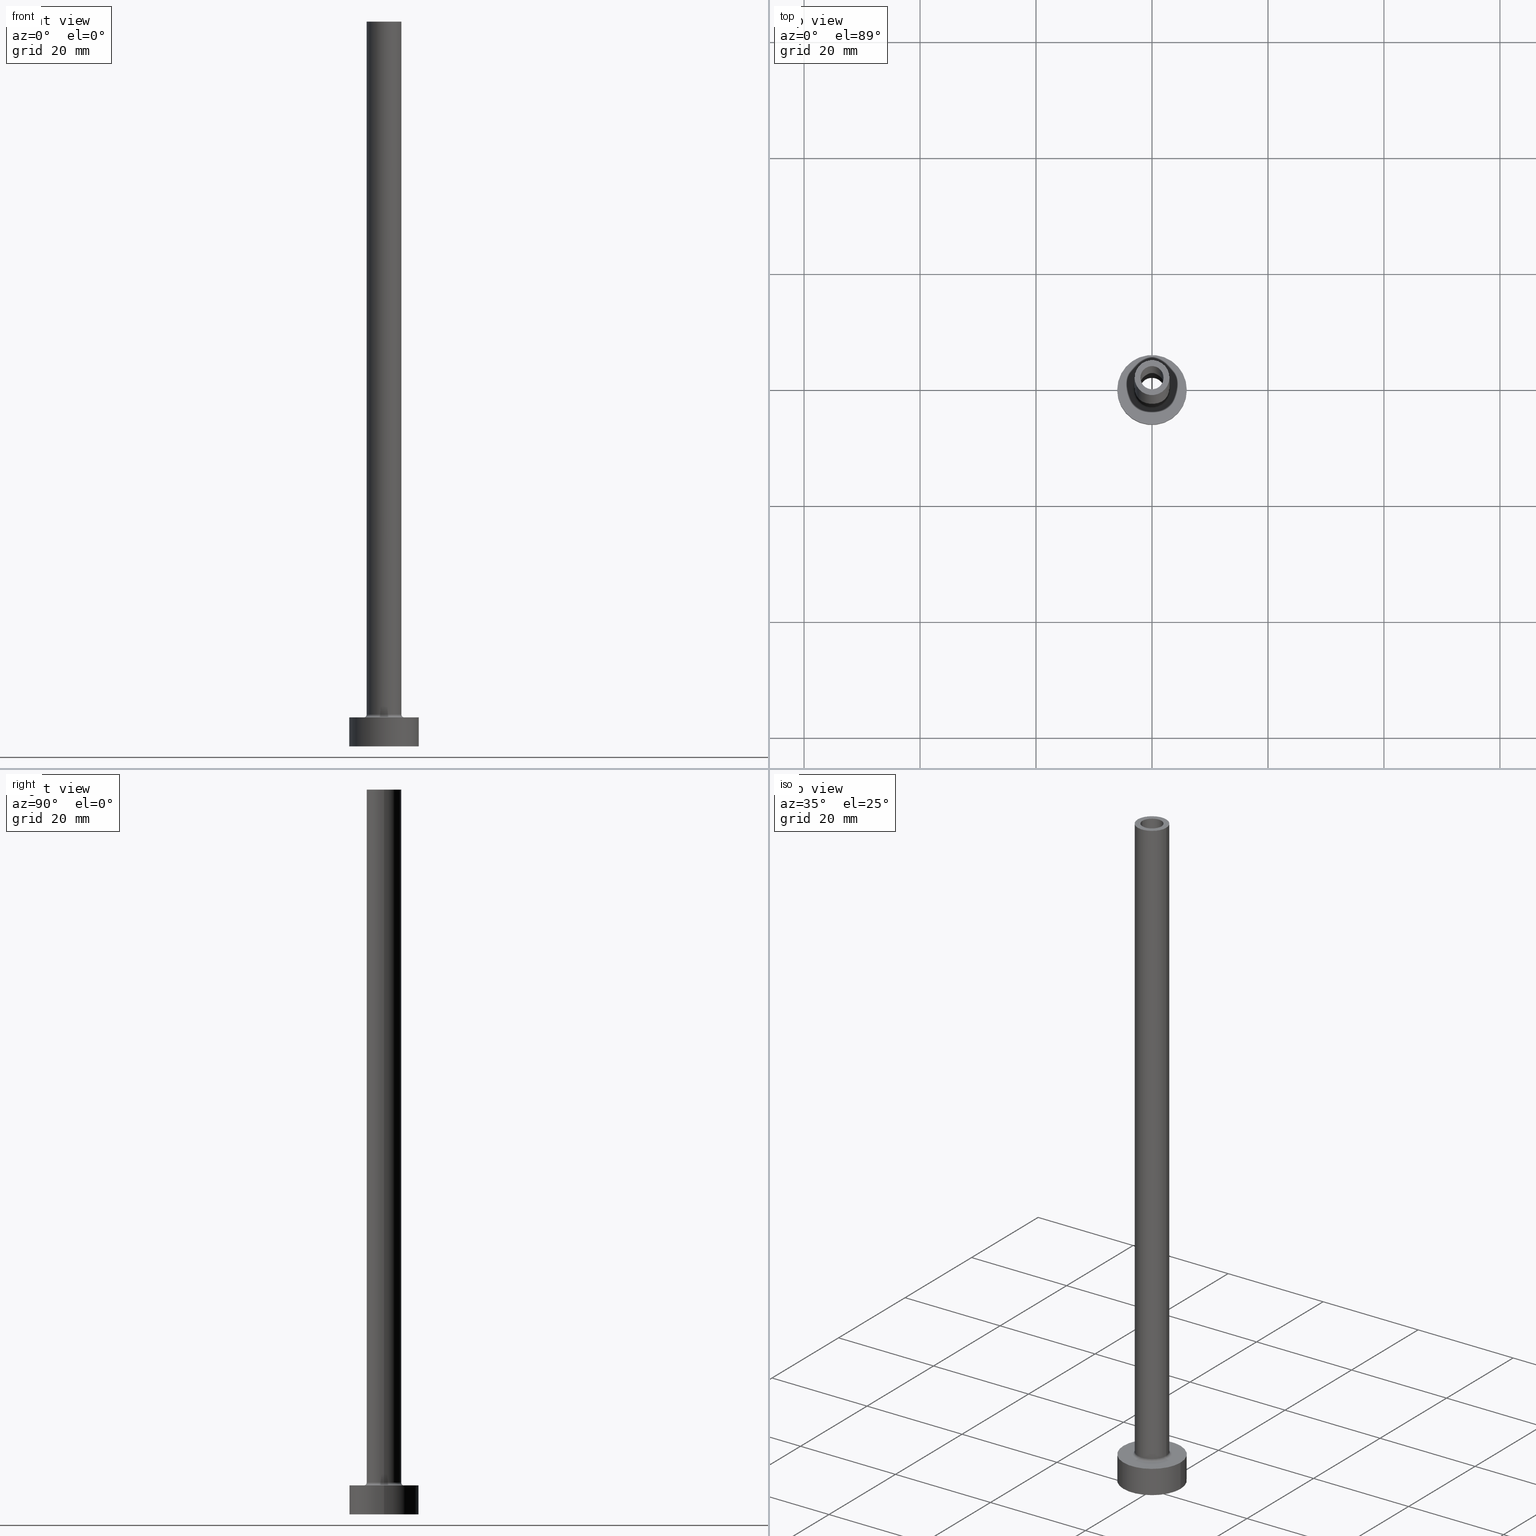
[diagram: canonical four-view strip — front | top / right | iso, engineering-drawing reading convention]
A machine part, canonical four-view strip (front | top / right | iso — engineering-drawing reading convention). The complete STEP part file that produces these views, byte-faithful:
ISO-10303-21;
HEADER;
FILE_DESCRIPTION (( 'STEP AP203' ),
    '1' );
FILE_NAME ('0551.STEP',
    '2023-02-13T17:46:34',
    ( '' ),
    ( '' ),
    'SwSTEP 2.0',
    'SolidWorks 2019',
    '' );
FILE_SCHEMA (( 'CONFIG_CONTROL_DESIGN' ));
ENDSEC;

DATA;
#1 = ADVANCED_FACE ( 'NONE', ( #415 ), #133, .F. ) ;
#2 = DATE_AND_TIME ( #95, #412 ) ;
#3 = FACE_BOUND ( 'NONE', #331, .T. ) ;
#4 = CARTESIAN_POINT ( 'NONE',  ( 0.000000000000000000, 0.000000000000000000, 80.00000000000000000 ) ) ;
#5 = AXIS2_PLACEMENT_3D ( 'NONE', #68, #219, #428 ) ;
#6 = LINE ( 'NONE', #357, #21 ) ;
#7 = PRODUCT_DEFINITION ( 'NEZN�M�', '', #178, #377 ) ;
#8 = CARTESIAN_POINT ( 'NONE',  ( 0.000000000000000000, 0.000000000000000000, 125.0000000000000000 ) ) ;
#9 = LOCAL_TIME ( 18, 46, 34.00000000000000000, #324 ) ;
#10 = DIRECTION ( 'NONE',  ( 1.000000000000000000, 0.000000000000000000, 0.000000000000000000 ) ) ;
#11 = EDGE_LOOP ( 'NONE', ( #150, #46, #402, #298 ) ) ;
#12 = PERSON_AND_ORGANIZATION ( #160, #295 ) ;
#13 = FACE_BOUND ( 'NONE', #442, .T. ) ;
#14 = EDGE_LOOP ( 'NONE', ( #126, #187, #86, #418 ) ) ;
#15 = DIRECTION ( 'NONE',  ( -1.000000000000000000, 0.000000000000000000, 0.000000000000000000 ) ) ;
#16 = ORIENTED_EDGE ( 'NONE', *, *, #125, .T. ) ;
#17 = CARTESIAN_POINT ( 'NONE',  ( 3.500000000000000444, 0.000000000000000000, 5.000000000000002665 ) ) ;
#18 = EDGE_LOOP ( 'NONE', ( #278, #235 ) ) ;
#19 = APPROVAL_ROLE ( '' ) ;
#20 = ORIENTED_EDGE ( 'NONE', *, *, #175, .T. ) ;
#21 = VECTOR ( 'NONE', #36, 1000.000000000000000 ) ;
#22 = CALENDAR_DATE ( 2023, 13, 2 ) ;
#23 = ADVANCED_FACE ( 'NONE', ( #277 ), #96, .T. ) ;
#24 = EDGE_CURVE ( 'NONE', #25, #272, #279, .T. ) ;
#25 = VERTEX_POINT ( 'NONE', #448 ) ;
#26 = DIRECTION ( 'NONE',  ( 1.000000000000000000, 0.000000000000000000, -0.000000000000000000 ) ) ;
#27 = DIRECTION ( 'NONE',  ( 1.000000000000000000, 0.000000000000000000, 0.000000000000000000 ) ) ;
#28 = CC_DESIGN_PERSON_AND_ORGANIZATION_ASSIGNMENT ( #167, #379, ( #7 ) ) ;
#29 = FACE_OUTER_BOUND ( 'NONE', #280, .T. ) ;
#30 = CARTESIAN_POINT ( 'NONE',  ( 0.000000000000000000, 0.000000000000000000, 80.00000000000000000 ) ) ;
#31 = LOCAL_TIME ( 18, 46, 34.00000000000000000, #257 ) ;
#32 = CARTESIAN_POINT ( 'NONE',  ( 0.000000000000000000, 0.000000000000000000, 80.00000000000000000 ) ) ;
#33 =( NAMED_UNIT ( * ) SI_UNIT ( $, .STERADIAN. ) SOLID_ANGLE_UNIT ( ) );
#34 = CIRCLE ( 'NONE', #349, 2.149999999999999911 ) ;
#35 = CIRCLE ( 'NONE', #381, 6.000000000000000888 ) ;
#36 = DIRECTION ( 'NONE',  ( -0.000000000000000000, -0.000000000000000000, -1.000000000000000000 ) ) ;
#37 = MANIFOLD_SOLID_BREP ( 'Odebrat vysunut�m4', #273 ) ;
#38 = DIRECTION ( 'NONE',  ( 0.000000000000000000, 0.000000000000000000, 1.000000000000000000 ) ) ;
#39 = AXIS2_PLACEMENT_3D ( 'NONE', #56, #347, #26 ) ;
#40 = CARTESIAN_POINT ( 'NONE',  ( 0.000000000000000000, 0.000000000000000000, 125.0000000000000000 ) ) ;
#41 = ORIENTED_EDGE ( 'NONE', *, *, #170, .T. ) ;
#42 = EDGE_CURVE ( 'NONE', #404, #226, #134, .T. ) ;
#43 = CC_DESIGN_PERSON_AND_ORGANIZATION_ASSIGNMENT ( #284, #424, ( #168 ) ) ;
#44 = CARTESIAN_POINT ( 'NONE',  ( 0.000000000000000000, 0.000000000000000000, 0.000000000000000000 ) ) ;
#45 = CARTESIAN_POINT ( 'NONE',  ( 6.000000000000000888, 7.347880794884120722E-16, 0.000000000000000000 ) ) ;
#46 = ORIENTED_EDGE ( 'NONE', *, *, #211, .F. ) ;
#47 = DIRECTION ( 'NONE',  ( 0.000000000000000000, 0.000000000000000000, 1.000000000000000000 ) ) ;
#48 = ORIENTED_EDGE ( 'NONE', *, *, #340, .T. ) ;
#49 = DIRECTION ( 'NONE',  ( 1.000000000000000000, 0.000000000000000000, 0.000000000000000000 ) ) ;
#50 = EDGE_LOOP ( 'NONE', ( #372, #409 ) ) ;
#51 = CARTESIAN_POINT ( 'NONE',  ( 0.000000000000000000, 0.000000000000000000, 125.0000000000000000 ) ) ;
#52 = ORIENTED_EDGE ( 'NONE', *, *, #170, .F. ) ;
#53 = DIRECTION ( 'NONE',  ( -0.000000000000000000, -0.000000000000000000, -1.000000000000000000 ) ) ;
#54 = ORIENTED_EDGE ( 'NONE', *, *, #387, .T. ) ;
#55 = EDGE_CURVE ( 'NONE', #337, #100, #198, .T. ) ;
#56 = CARTESIAN_POINT ( 'NONE',  ( 0.000000000000000000, 0.000000000000000000, 0.000000000000000000 ) ) ;
#57 = AXIS2_PLACEMENT_3D ( 'NONE', #77, #328, #294 ) ;
#58 = DIRECTION ( 'NONE',  ( -1.000000000000000000, 0.000000000000000000, 0.000000000000000000 ) ) ;
#59 = ORIENTED_EDGE ( 'NONE', *, *, #387, .F. ) ;
#60 = ORIENTED_EDGE ( 'NONE', *, *, #24, .F. ) ;
#61 = PERSON_AND_ORGANIZATION ( #160, #295 ) ;
#62 = ORIENTED_EDGE ( 'NONE', *, *, #453, .F. ) ;
#63 = DIRECTION ( 'NONE',  ( 1.000000000000000000, 0.000000000000000000, 0.000000000000000000 ) ) ;
#64 = AXIS2_PLACEMENT_3D ( 'NONE', #209, #420, #27 ) ;
#65 = CARTESIAN_POINT ( 'NONE',  ( -6.000000000000000888, 0.000000000000000000, 0.000000000000000000 ) ) ;
#66 = LINE ( 'NONE', #307, #360 ) ;
#67 = ADVANCED_FACE ( 'NONE', ( #130 ), #172, .F. ) ;
#68 = CARTESIAN_POINT ( 'NONE',  ( 0.000000000000000000, 0.000000000000000000, 5.500000000000005329 ) ) ;
#69 = LINE ( 'NONE', #362, #164 ) ;
#70 = CALENDAR_DATE ( 2023, 13, 2 ) ;
#71 = CARTESIAN_POINT ( 'NONE',  ( 0.000000000000000000, 0.000000000000000000, 80.00000000000000000 ) ) ;
#72 = CC_DESIGN_PERSON_AND_ORGANIZATION_ASSIGNMENT ( #251, #429, ( #286 ) ) ;
#73 = ADVANCED_FACE ( 'NONE', ( #29 ), #450, .T. ) ;
#74 = ADVANCED_FACE ( 'NONE', ( #315, #241 ), #206, .F. ) ;
#75 = AXIS2_PLACEMENT_3D ( 'NONE', #214, #169, #352 ) ;
#76 = DIRECTION ( 'NONE',  ( 1.000000000000000000, 0.000000000000000000, 0.000000000000000000 ) ) ;
#77 = CARTESIAN_POINT ( 'NONE',  ( 0.000000000000000000, 0.000000000000000000, 5.500000000000005329 ) ) ;
#78 = AXIS2_PLACEMENT_3D ( 'NONE', #8, #47, #113 ) ;
#79 = ORIENTED_EDGE ( 'NONE', *, *, #125, .F. ) ;
#80 = CARTESIAN_POINT ( 'NONE',  ( -3.000000000000000444, 0.000000000000000000, 5.500000000000005329 ) ) ;
#81 = ORIENTED_EDGE ( 'NONE', *, *, #207, .F. ) ;
#82 = DIRECTION ( 'NONE',  ( 1.000000000000000000, 0.000000000000000000, -0.000000000000000000 ) ) ;
#83 = ORIENTED_EDGE ( 'NONE', *, *, #365, .F. ) ;
#84 = AXIS2_PLACEMENT_3D ( 'NONE', #4, #431, #215 ) ;
#85 = LINE ( 'NONE', #297, #205 ) ;
#86 = ORIENTED_EDGE ( 'NONE', *, *, #151, .T. ) ;
#87 = CIRCLE ( 'NONE', #78, 3.000000000000000444 ) ;
#88 = CARTESIAN_POINT ( 'NONE',  ( 0.000000000000000000, 0.000000000000000000, 0.000000000000000000 ) ) ;
#89 = VERTEX_POINT ( 'NONE', #131 ) ;
#90 = EDGE_CURVE ( 'NONE', #339, #195, #158, .T. ) ;
#91 = AXIS2_PLACEMENT_3D ( 'NONE', #397, #108, #144 ) ;
#92 = LOCAL_TIME ( 18, 46, 34.00000000000000000, #202 ) ;
#93 = CARTESIAN_POINT ( 'NONE',  ( 0.000000000000000000, 0.000000000000000000, 86.08111831820431803 ) ) ;
#94 = PRODUCT_DEFINITION_SHAPE ( 'NONE', 'NONE',  #7 ) ;
#95 = CALENDAR_DATE ( 2023, 13, 2 ) ;
#96 = CYLINDRICAL_SURFACE ( 'NONE', #247, 6.000000000000000888 ) ;
#97 = AXIS2_PLACEMENT_3D ( 'NONE', #363, #193, #10 ) ;
#98 = CARTESIAN_POINT ( 'NONE',  ( 0.000000000000000000, 0.000000000000000000, 125.0000000000000000 ) ) ;
#99 = ORIENTED_EDGE ( 'NONE', *, *, #340, .F. ) ;
#100 = VERTEX_POINT ( 'NONE', #358 ) ;
#101 = EDGE_CURVE ( 'NONE', #132, #271, #293, .T. ) ;
#102 = AXIS2_PLACEMENT_3D ( 'NONE', #32, #425, #258 ) ;
#103 = SECURITY_CLASSIFICATION_LEVEL ( 'unclassified' ) ;
#104 = CIRCLE ( 'NONE', #194, 6.000000000000000888 ) ;
#105 = DIRECTION ( 'NONE',  ( 1.224646799147353207E-16, 1.000000000000000000, -0.000000000000000000 ) ) ;
#106 = EDGE_CURVE ( 'NONE', #195, #344, #319, .T. ) ;
#107 = PERSON_AND_ORGANIZATION ( #160, #295 ) ;
#108 = DIRECTION ( 'NONE',  ( 0.000000000000000000, -1.000000000000000000, 0.000000000000000000 ) ) ;
#109 = DIRECTION ( 'NONE',  ( 0.000000000000000000, 0.000000000000000000, 1.000000000000000000 ) ) ;
#110 = DIRECTION ( 'NONE',  ( 1.000000000000000000, 0.000000000000000000, 0.000000000000000000 ) ) ;
#111 = FACE_OUTER_BOUND ( 'NONE', #204, .T. ) ;
#112 = CYLINDRICAL_SURFACE ( 'NONE', #282, 6.000000000000000888 ) ;
#113 = DIRECTION ( 'NONE',  ( 1.000000000000000000, 0.000000000000000000, 0.000000000000000000 ) ) ;
#114 = ORIENTED_EDGE ( 'NONE', *, *, #449, .F. ) ;
#115 = APPROVAL_DATE_TIME ( #148, #421 ) ;
#116 = DIRECTION ( 'NONE',  ( 0.000000000000000000, 0.000000000000000000, 1.000000000000000000 ) ) ;
#117 = ORIENTED_EDGE ( 'NONE', *, *, #408, .T. ) ;
#118 = CYLINDRICAL_SURFACE ( 'NONE', #345, 2.000000000000000000 ) ;
#119 = EDGE_LOOP ( 'NONE', ( #302, #444, #346, #155 ) ) ;
#120 = DIRECTION ( 'NONE',  ( 0.000000000000000000, 0.000000000000000000, -1.000000000000000000 ) ) ;
#121 = ORIENTED_EDGE ( 'NONE', *, *, #365, .T. ) ;
#122 = CC_DESIGN_PERSON_AND_ORGANIZATION_ASSIGNMENT ( #61, #458, ( #178 ) ) ;
#123 = CIRCLE ( 'NONE', #269, 3.500000000000000444 ) ;
#124 = FACE_BOUND ( 'NONE', #250, .T. ) ;
#125 = EDGE_CURVE ( 'NONE', #272, #25, #192, .T. ) ;
#126 = ORIENTED_EDGE ( 'NONE', *, *, #320, .F. ) ;
#127 = APPROVAL_DATE_TIME ( #343, #274 ) ;
#128 = DIRECTION ( 'NONE',  ( 1.000000000000000000, 0.000000000000000000, 0.000000000000000000 ) ) ;
#129 =( LENGTH_UNIT ( ) NAMED_UNIT ( * ) SI_UNIT ( .MILLI., .METRE. ) );
#130 = FACE_OUTER_BOUND ( 'NONE', #244, .T. ) ;
#131 = CARTESIAN_POINT ( 'NONE',  ( 2.000000000000000000, 2.449293598294705921E-16, 125.0000000000000000 ) ) ;
#132 = VERTEX_POINT ( 'NONE', #289 ) ;
#133 = TOROIDAL_SURFACE ( 'NONE', #64, 3.500000000000000444, 0.5000000000000000000 ) ;
#134 = CIRCLE ( 'NONE', #396, 2.000000000000000000 ) ;
#135 = ADVANCED_BREP_SHAPE_REPRESENTATION ( '0551', ( #37, #398 ), #145 ) ;
#136 = EDGE_LOOP ( 'NONE', ( #48, #228 ) ) ;
#137 = CARTESIAN_POINT ( 'NONE',  ( 0.000000000000000000, 0.000000000000000000, 0.000000000000000000 ) ) ;
#138 = DIRECTION ( 'NONE',  ( -0.000000000000000000, -0.000000000000000000, -1.000000000000000000 ) ) ;
#139 = CIRCLE ( 'NONE', #57, 3.000000000000000444 ) ;
#140 = DIRECTION ( 'NONE',  ( -1.000000000000000000, 0.000000000000000000, 0.000000000000000000 ) ) ;
#141 = APPROVAL_DATE_TIME ( #2, #373 ) ;
#142 = CARTESIAN_POINT ( 'NONE',  ( -2.000000000000000000, 0.000000000000000000, 125.0000000000000000 ) ) ;
#143 = CC_DESIGN_DATE_AND_TIME_ASSIGNMENT ( #391, #240, ( #7 ) ) ;
#144 = DIRECTION ( 'NONE',  ( 0.000000000000000000, 0.000000000000000000, -1.000000000000000000 ) ) ;
#145 =( GEOMETRIC_REPRESENTATION_CONTEXT ( 3 ) GLOBAL_UNCERTAINTY_ASSIGNED_CONTEXT ( ( #236 ) ) GLOBAL_UNIT_ASSIGNED_CONTEXT ( ( #129, #174, #33 ) ) REPRESENTATION_CONTEXT ( 'NONE', 'WORKASPACE' ) );
#146 = CIRCLE ( 'NONE', #5, 3.000000000000000444 ) ;
#147 = CARTESIAN_POINT ( 'NONE',  ( 0.000000000000000000, 0.000000000000000000, 125.0000000000000000 ) ) ;
#148 = DATE_AND_TIME ( #332, #9 ) ;
#149 = CARTESIAN_POINT ( 'NONE',  ( 0.000000000000000000, 0.000000000000000000, 5.000000000000000000 ) ) ;
#150 = ORIENTED_EDGE ( 'NONE', *, *, #230, .F. ) ;
#151 = EDGE_CURVE ( 'NONE', #264, #166, #430, .T. ) ;
#152 = AXIS2_PLACEMENT_3D ( 'NONE', #149, #116, #82 ) ;
#153 = CYLINDRICAL_SURFACE ( 'NONE', #308, 2.149999999999999911 ) ;
#154 = CIRCLE ( 'NONE', #432, 2.149999999999999911 ) ;
#155 = ORIENTED_EDGE ( 'NONE', *, *, #159, .F. ) ;
#156 = CARTESIAN_POINT ( 'NONE',  ( 3.000000000000000444, 3.673940397442060361E-16, 125.0000000000000000 ) ) ;
#157 = VERTEX_POINT ( 'NONE', #183 ) ;
#158 = CIRCLE ( 'NONE', #455, 3.000000000000000444 ) ;
#159 = EDGE_CURVE ( 'NONE', #25, #231, #69, .T. ) ;
#160 = PERSON ( 'NEUR�EN�', 'NEUR�EN�', 'NEUR�EN�', ('NEUR�EN�'), ('NEUR�EN�'), ('NEUR�EN�') ) ;
#161 = DIRECTION ( 'NONE',  ( 0.000000000000000000, 0.000000000000000000, -1.000000000000000000 ) ) ;
#162 = AXIS2_PLACEMENT_3D ( 'NONE', #311, #422, #460 ) ;
#163 = VERTEX_POINT ( 'NONE', #142 ) ;
#164 = VECTOR ( 'NONE', #325, 1000.000000000000000 ) ;
#165 = DIRECTION ( 'NONE',  ( -0.000000000000000000, -0.000000000000000000, -1.000000000000000000 ) ) ;
#166 = VERTEX_POINT ( 'NONE', #65 ) ;
#167 = PERSON_AND_ORGANIZATION ( #160, #295 ) ;
#168 = PRODUCT ( '0551', '0551', '', ( #243 ) ) ;
#169 = DIRECTION ( 'NONE',  ( 0.000000000000000000, 0.000000000000000000, 1.000000000000000000 ) ) ;
#170 = EDGE_CURVE ( 'NONE', #226, #404, #233, .T. ) ;
#171 = DIRECTION ( 'NONE',  ( 1.000000000000000000, 0.000000000000000000, 0.000000000000000000 ) ) ;
#172 = CYLINDRICAL_SURFACE ( 'NONE', #176, 2.149999999999999911 ) ;
#173 = EDGE_LOOP ( 'NONE', ( #446, #117, #52, #59 ) ) ;
#174 =( NAMED_UNIT ( * ) PLANE_ANGLE_UNIT ( ) SI_UNIT ( $, .RADIAN. ) );
#175 = EDGE_CURVE ( 'NONE', #231, #406, #34, .T. ) ;
#176 = AXIS2_PLACEMENT_3D ( 'NONE', #93, #314, #380 ) ;
#177 = DIRECTION ( 'NONE',  ( -0.000000000000000000, -0.000000000000000000, -1.000000000000000000 ) ) ;
#178 = PRODUCT_DEFINITION_FORMATION_WITH_SPECIFIED_SOURCE ( 'LIBOVOLN�', '', #168, .NOT_KNOWN. ) ;
#179 = PLANE ( 'NONE',  #102 ) ;
#180 = AXIS2_PLACEMENT_3D ( 'NONE', #71, #38, #110 ) ;
#181 = TOROIDAL_SURFACE ( 'NONE', #416, 3.500000000000000444, 0.5000000000000000000 ) ;
#182 = CARTESIAN_POINT ( 'NONE',  ( 0.000000000000000000, 0.000000000000000000, 0.000000000000000000 ) ) ;
#183 = CARTESIAN_POINT ( 'NONE',  ( -3.500000000000000444, 4.286263797015737088E-16, 5.000000000000002665 ) ) ;
#184 = DIRECTION ( 'NONE',  ( 0.000000000000000000, 0.000000000000000000, -1.000000000000000000 ) ) ;
#185 = CARTESIAN_POINT ( 'NONE',  ( 0.000000000000000000, 0.000000000000000000, 5.000000000000000000 ) ) ;
#186 = DIRECTION ( 'NONE',  ( 0.000000000000000000, 0.000000000000000000, 1.000000000000000000 ) ) ;
#187 = ORIENTED_EDGE ( 'NONE', *, *, #207, .T. ) ;
#188 = APPROVAL_PERSON_ORGANIZATION ( #12, #421, #288 ) ;
#189 = APPLICATION_CONTEXT ( 'configuration controlled 3d designs of mechanical parts and assemblies' ) ;
#190 = LINE ( 'NONE', #371, #321 ) ;
#191 = ORIENTED_EDGE ( 'NONE', *, *, #106, .F. ) ;
#192 = CIRCLE ( 'NONE', #180, 2.149999999999999911 ) ;
#193 = DIRECTION ( 'NONE',  ( 0.000000000000000000, 0.000000000000000000, 1.000000000000000000 ) ) ;
#194 = AXIS2_PLACEMENT_3D ( 'NONE', #185, #270, #49 ) ;
#195 = VERTEX_POINT ( 'NONE', #218 ) ;
#196 = CARTESIAN_POINT ( 'NONE',  ( 2.149999999999999911, 2.632990618166808742E-16, 80.00000000000000000 ) ) ;
#197 = ORIENTED_EDGE ( 'NONE', *, *, #230, .T. ) ;
#198 = CIRCLE ( 'NONE', #457, 6.000000000000000888 ) ;
#199 = LOCAL_TIME ( 18, 46, 34.00000000000000000, #213 ) ;
#200 = APPLICATION_PROTOCOL_DEFINITION ( 'international standard', 'config_control_design', 1994, #189 ) ;
#201 = ORIENTED_EDGE ( 'NONE', *, *, #399, .T. ) ;
#202 = COORDINATED_UNIVERSAL_TIME_OFFSET ( 1, 0, .AHEAD. ) ;
#203 = EDGE_CURVE ( 'NONE', #157, #271, #123, .T. ) ;
#204 = EDGE_LOOP ( 'NONE', ( #60, #79 ) ) ;
#205 = VECTOR ( 'NONE', #120, 1000.000000000000000 ) ;
#206 = PLANE ( 'NONE',  #39 ) ;
#207 = EDGE_CURVE ( 'NONE', #100, #264, #459, .T. ) ;
#208 = VECTOR ( 'NONE', #433, 1000.000000000000000 ) ;
#209 = CARTESIAN_POINT ( 'NONE',  ( 0.000000000000000000, 0.000000000000000000, 5.500000000000005329 ) ) ;
#210 = ADVANCED_FACE ( 'NONE', ( #3, #111 ), #179, .F. ) ;
#211 = EDGE_CURVE ( 'NONE', #132, #344, #146, .T. ) ;
#212 = ADVANCED_FACE ( 'NONE', ( #216 ), #359, .F. ) ;
#213 = COORDINATED_UNIVERSAL_TIME_OFFSET ( 1, 0, .AHEAD. ) ;
#214 = CARTESIAN_POINT ( 'NONE',  ( 0.000000000000000000, 0.000000000000000000, 80.00000000000000000 ) ) ;
#215 = DIRECTION ( 'NONE',  ( 1.000000000000000000, 0.000000000000000000, 0.000000000000000000 ) ) ;
#216 = FACE_OUTER_BOUND ( 'NONE', #238, .T. ) ;
#217 = CIRCLE ( 'NONE', #162, 3.500000000000000444 ) ;
#218 = CARTESIAN_POINT ( 'NONE',  ( -3.000000000000000444, 0.000000000000000000, 125.0000000000000000 ) ) ;
#219 = DIRECTION ( 'NONE',  ( 0.000000000000000000, 0.000000000000000000, 1.000000000000000000 ) ) ;
#220 = EDGE_CURVE ( 'NONE', #339, #132, #6, .T. ) ;
#221 = CARTESIAN_POINT ( 'NONE',  ( 0.000000000000000000, 0.000000000000000000, 5.000000000000000000 ) ) ;
#222 = AXIS2_PLACEMENT_3D ( 'NONE', #40, #184, #326 ) ;
#223 = ADVANCED_FACE ( 'NONE', ( #461 ), #112, .T. ) ;
#224 = CIRCLE ( 'NONE', #370, 2.000000000000000000 ) ;
#225 = CYLINDRICAL_SURFACE ( 'NONE', #356, 3.000000000000000444 ) ;
#226 = VERTEX_POINT ( 'NONE', #283 ) ;
#227 = DIRECTION ( 'NONE',  ( 0.000000000000000000, 0.000000000000000000, 1.000000000000000000 ) ) ;
#228 = ORIENTED_EDGE ( 'NONE', *, *, #90, .T. ) ;
#229 = CARTESIAN_POINT ( 'NONE',  ( 0.000000000000000000, 0.000000000000000000, 125.0000000000000000 ) ) ;
#230 = EDGE_CURVE ( 'NONE', #344, #157, #451, .T. ) ;
#231 = VERTEX_POINT ( 'NONE', #256 ) ;
#232 = APPLICATION_CONTEXT ( 'configuration controlled 3d designs of mechanical parts and assemblies' ) ;
#233 = CIRCLE ( 'NONE', #84, 2.000000000000000000 ) ;
#234 = CARTESIAN_POINT ( 'NONE',  ( 2.000000000000000000, 2.449293598294705921E-16, 80.00000000000000000 ) ) ;
#235 = ORIENTED_EDGE ( 'NONE', *, *, #151, .F. ) ;
#236 = UNCERTAINTY_MEASURE_WITH_UNIT (LENGTH_MEASURE( 1.000000000000000082E-05 ), #129, 'distance_accuracy_value', 'NONE');
#237 = FACE_OUTER_BOUND ( 'NONE', #411, .T. ) ;
#238 = EDGE_LOOP ( 'NONE', ( #266, #121, #54, #452 ) ) ;
#239 = CC_DESIGN_APPROVAL ( #421, ( #286 ) ) ;
#240 = DATE_TIME_ROLE ( 'creation_date' ) ;
#241 = FACE_OUTER_BOUND ( 'NONE', #18, .T. ) ;
#242 = ADVANCED_FACE ( 'NONE', ( #394 ), #118, .F. ) ;
#243 = MECHANICAL_CONTEXT ( 'NONE', #232, 'mechanical' ) ;
#244 = EDGE_LOOP ( 'NONE', ( #361, #16, #268, #20 ) ) ;
#245 = EDGE_LOOP ( 'NONE', ( #364, #114 ) ) ;
#246 = AXIS2_PLACEMENT_3D ( 'NONE', #382, #177, #58 ) ;
#247 = AXIS2_PLACEMENT_3D ( 'NONE', #348, #417, #249 ) ;
#248 = ADVANCED_FACE ( 'NONE', ( #443 ), #225, .T. ) ;
#249 = DIRECTION ( 'NONE',  ( -1.000000000000000000, 0.000000000000000000, 0.000000000000000000 ) ) ;
#250 = EDGE_LOOP ( 'NONE', ( #310, #376 ) ) ;
#251 = PERSON_AND_ORGANIZATION ( #160, #295 ) ;
#252 = DIRECTION ( 'NONE',  ( 0.000000000000000000, 0.000000000000000000, 1.000000000000000000 ) ) ;
#253 = APPROVAL_ROLE ( '' ) ;
#254 = DIRECTION ( 'NONE',  ( -0.000000000000000000, -0.000000000000000000, -1.000000000000000000 ) ) ;
#255 = APPROVAL_STATUS ( 'not_yet_approved' ) ;
#256 = CARTESIAN_POINT ( 'NONE',  ( -2.149999999999999911, 0.000000000000000000, 0.000000000000000000 ) ) ;
#257 = COORDINATED_UNIVERSAL_TIME_OFFSET ( 1, 0, .AHEAD. ) ;
#258 = DIRECTION ( 'NONE',  ( 1.000000000000000000, 0.000000000000000000, -0.000000000000000000 ) ) ;
#259 = CARTESIAN_POINT ( 'NONE',  ( 0.000000000000000000, 0.000000000000000000, 5.000000000000000000 ) ) ;
#260 = EDGE_CURVE ( 'NONE', #163, #89, #335, .T. ) ;
#261 = CARTESIAN_POINT ( 'NONE',  ( -6.000000000000000888, 0.000000000000000000, 5.000000000000000000 ) ) ;
#262 = ORIENTED_EDGE ( 'NONE', *, *, #90, .F. ) ;
#263 = CARTESIAN_POINT ( 'NONE',  ( 0.000000000000000000, 0.000000000000000000, 86.08111831820431803 ) ) ;
#264 = VERTEX_POINT ( 'NONE', #45 ) ;
#265 = CARTESIAN_POINT ( 'NONE',  ( 0.000000000000000000, 0.000000000000000000, 125.0000000000000000 ) ) ;
#266 = ORIENTED_EDGE ( 'NONE', *, *, #408, .F. ) ;
#267 = CARTESIAN_POINT ( 'NONE',  ( 0.000000000000000000, 0.000000000000000000, 5.500000000000005329 ) ) ;
#268 = ORIENTED_EDGE ( 'NONE', *, *, #159, .T. ) ;
#269 = AXIS2_PLACEMENT_3D ( 'NONE', #221, #285, #392 ) ;
#270 = DIRECTION ( 'NONE',  ( 0.000000000000000000, 0.000000000000000000, 1.000000000000000000 ) ) ;
#271 = VERTEX_POINT ( 'NONE', #17 ) ;
#272 = VERTEX_POINT ( 'NONE', #196 ) ;
#273 = CLOSED_SHELL ( 'NONE', ( #242, #309, #374, #248, #23, #223, #291, #74, #73, #427, #1, #67, #210, #212 ) ) ;
#274 = APPROVAL ( #255, 'NEUR�EN�' ) ;
#275 = PERSON_AND_ORGANIZATION_ROLE ( 'creator' ) ;
#276 = ORIENTED_EDGE ( 'NONE', *, *, #42, .T. ) ;
#277 = FACE_OUTER_BOUND ( 'NONE', #14, .T. ) ;
#278 = ORIENTED_EDGE ( 'NONE', *, *, #353, .F. ) ;
#279 = CIRCLE ( 'NONE', #75, 2.149999999999999911 ) ;
#280 = EDGE_LOOP ( 'NONE', ( #386, #99, #384, #201 ) ) ;
#281 = DIRECTION ( 'NONE',  ( 0.000000000000000000, 0.000000000000000000, 1.000000000000000000 ) ) ;
#282 = AXIS2_PLACEMENT_3D ( 'NONE', #259, #138, #140 ) ;
#283 = CARTESIAN_POINT ( 'NONE',  ( -2.000000000000000000, 0.000000000000000000, 80.00000000000000000 ) ) ;
#284 = PERSON_AND_ORGANIZATION ( #160, #295 ) ;
#285 = DIRECTION ( 'NONE',  ( -0.000000000000000000, -0.000000000000000000, -1.000000000000000000 ) ) ;
#286 = SECURITY_CLASSIFICATION ( '', '', #103 ) ;
#287 = CARTESIAN_POINT ( 'NONE',  ( 6.000000000000000888, 7.347880794884120722E-16, 5.000000000000000000 ) ) ;
#288 = APPROVAL_ROLE ( '' ) ;
#289 = CARTESIAN_POINT ( 'NONE',  ( 3.000000000000000444, 3.673940397442060361E-16, 5.500000000000005329 ) ) ;
#290 = AXIS2_PLACEMENT_3D ( 'NONE', #182, #252, #389 ) ;
#291 = ADVANCED_FACE ( 'NONE', ( #124, #336 ), #410, .T. ) ;
#292 = DIRECTION ( 'NONE',  ( 1.000000000000000000, 0.000000000000000000, 0.000000000000000000 ) ) ;
#293 = CIRCLE ( 'NONE', #91, 0.5000000000000004441 ) ;
#294 = DIRECTION ( 'NONE',  ( 1.000000000000000000, 0.000000000000000000, 0.000000000000000000 ) ) ;
#295 = ORGANIZATION ( 'NEUR�EN�', 'NEUR�EN�', '' ) ;
#296 = DATE_TIME_ROLE ( 'classification_date' ) ;
#297 = CARTESIAN_POINT ( 'NONE',  ( -2.000000000000000000, 0.000000000000000000, 125.0000000000000000 ) ) ;
#298 = ORIENTED_EDGE ( 'NONE', *, *, #203, .F. ) ;
#299 = AXIS2_PLACEMENT_3D ( 'NONE', #423, #105, #323 ) ;
#300 = AXIS2_PLACEMENT_3D ( 'NONE', #265, #281, #388 ) ;
#301 = FACE_OUTER_BOUND ( 'NONE', #136, .T. ) ;
#302 = ORIENTED_EDGE ( 'NONE', *, *, #24, .T. ) ;
#303 = CARTESIAN_POINT ( 'NONE',  ( 2.149999999999999911, 2.632990618166808742E-16, 86.08111831820431803 ) ) ;
#304 = ORIENTED_EDGE ( 'NONE', *, *, #399, .F. ) ;
#305 = DIRECTION ( 'NONE',  ( 1.000000000000000000, 0.000000000000000000, 0.000000000000000000 ) ) ;
#306 = EDGE_LOOP ( 'NONE', ( #262, #383, #334, #191 ) ) ;
#307 = CARTESIAN_POINT ( 'NONE',  ( -6.000000000000000888, 0.000000000000000000, 5.000000000000000000 ) ) ;
#308 = AXIS2_PLACEMENT_3D ( 'NONE', #263, #368, #15 ) ;
#309 = ADVANCED_FACE ( 'NONE', ( #338 ), #153, .F. ) ;
#310 = ORIENTED_EDGE ( 'NONE', *, *, #453, .T. ) ;
#311 = CARTESIAN_POINT ( 'NONE',  ( 0.000000000000000000, 0.000000000000000000, 5.000000000000000000 ) ) ;
#312 = DIRECTION ( 'NONE',  ( 0.000000000000000000, 0.000000000000000000, 1.000000000000000000 ) ) ;
#313 = CC_DESIGN_APPROVAL ( #274, ( #7 ) ) ;
#314 = DIRECTION ( 'NONE',  ( 0.000000000000000000, 0.000000000000000000, -1.000000000000000000 ) ) ;
#315 = FACE_BOUND ( 'NONE', #245, .T. ) ;
#316 = ORIENTED_EDGE ( 'NONE', *, *, #260, .F. ) ;
#317 = DIRECTION ( 'NONE',  ( 1.000000000000000000, 0.000000000000000000, 0.000000000000000000 ) ) ;
#318 = DIRECTION ( 'NONE',  ( -0.000000000000000000, -0.000000000000000000, -1.000000000000000000 ) ) ;
#319 = LINE ( 'NONE', #395, #208 ) ;
#320 = EDGE_CURVE ( 'NONE', #100, #337, #104, .T. ) ;
#321 = VECTOR ( 'NONE', #333, 1000.000000000000000 ) ;
#322 = APPLICATION_PROTOCOL_DEFINITION ( 'international standard', 'config_control_design', 1994, #232 ) ;
#323 = DIRECTION ( 'NONE',  ( -1.000000000000000000, 1.224646799147354440E-16, 0.000000000000000000 ) ) ;
#324 = COORDINATED_UNIVERSAL_TIME_OFFSET ( 1, 0, .AHEAD. ) ;
#325 = DIRECTION ( 'NONE',  ( 0.000000000000000000, 0.000000000000000000, -1.000000000000000000 ) ) ;
#326 = DIRECTION ( 'NONE',  ( -1.000000000000000000, 0.000000000000000000, 0.000000000000000000 ) ) ;
#327 = VECTOR ( 'NONE', #161, 1000.000000000000000 ) ;
#328 = DIRECTION ( 'NONE',  ( 0.000000000000000000, 0.000000000000000000, 1.000000000000000000 ) ) ;
#329 = DATE_AND_TIME ( #70, #31 ) ;
#330 = DIRECTION ( 'NONE',  ( 0.000000000000000000, 0.000000000000000000, 1.000000000000000000 ) ) ;
#331 = EDGE_LOOP ( 'NONE', ( #41, #276 ) ) ;
#332 = CALENDAR_DATE ( 2023, 13, 2 ) ;
#333 = DIRECTION ( 'NONE',  ( 0.000000000000000000, 0.000000000000000000, -1.000000000000000000 ) ) ;
#334 = ORIENTED_EDGE ( 'NONE', *, *, #211, .T. ) ;
#335 = CIRCLE ( 'NONE', #97, 2.000000000000000000 ) ;
#336 = FACE_OUTER_BOUND ( 'NONE', #50, .T. ) ;
#337 = VERTEX_POINT ( 'NONE', #261 ) ;
#338 = FACE_OUTER_BOUND ( 'NONE', #119, .T. ) ;
#339 = VERTEX_POINT ( 'NONE', #156 ) ;
#340 = EDGE_CURVE ( 'NONE', #195, #339, #87, .T. ) ;
#341 = CC_DESIGN_DATE_AND_TIME_ASSIGNMENT ( #329, #296, ( #286 ) ) ;
#342 = EDGE_CURVE ( 'NONE', #272, #406, #403, .T. ) ;
#343 = DATE_AND_TIME ( #22, #92 ) ;
#344 = VERTEX_POINT ( 'NONE', #80 ) ;
#345 = AXIS2_PLACEMENT_3D ( 'NONE', #229, #401, #375 ) ;
#346 = ORIENTED_EDGE ( 'NONE', *, *, #449, .T. ) ;
#347 = DIRECTION ( 'NONE',  ( 0.000000000000000000, 0.000000000000000000, 1.000000000000000000 ) ) ;
#348 = CARTESIAN_POINT ( 'NONE',  ( 0.000000000000000000, 0.000000000000000000, 5.000000000000000000 ) ) ;
#349 = AXIS2_PLACEMENT_3D ( 'NONE', #44, #254, #76 ) ;
#350 = DIRECTION ( 'NONE',  ( 0.000000000000000000, 0.000000000000000000, 1.000000000000000000 ) ) ;
#351 = CALENDAR_DATE ( 2023, 13, 2 ) ;
#352 = DIRECTION ( 'NONE',  ( 1.000000000000000000, 0.000000000000000000, 0.000000000000000000 ) ) ;
#353 = EDGE_CURVE ( 'NONE', #166, #264, #35, .T. ) ;
#354 = DIRECTION ( 'NONE',  ( 0.000000000000000000, 0.000000000000000000, 1.000000000000000000 ) ) ;
#355 = APPROVAL_STATUS ( 'not_yet_approved' ) ;
#356 = AXIS2_PLACEMENT_3D ( 'NONE', #51, #436, #405 ) ;
#357 = CARTESIAN_POINT ( 'NONE',  ( 3.000000000000000444, 3.673940397442060361E-16, 125.0000000000000000 ) ) ;
#358 = CARTESIAN_POINT ( 'NONE',  ( 6.000000000000000888, 7.347880794884120722E-16, 5.000000000000000000 ) ) ;
#359 = CYLINDRICAL_SURFACE ( 'NONE', #222, 2.000000000000000000 ) ;
#360 = VECTOR ( 'NONE', #53, 1000.000000000000000 ) ;
#361 = ORIENTED_EDGE ( 'NONE', *, *, #342, .F. ) ;
#362 = CARTESIAN_POINT ( 'NONE',  ( -2.149999999999999911, 0.000000000000000000, 86.08111831820431803 ) ) ;
#363 = CARTESIAN_POINT ( 'NONE',  ( 0.000000000000000000, 0.000000000000000000, 125.0000000000000000 ) ) ;
#364 = ORIENTED_EDGE ( 'NONE', *, *, #175, .F. ) ;
#365 = EDGE_CURVE ( 'NONE', #89, #163, #224, .T. ) ;
#366 = DIRECTION ( 'NONE',  ( 1.000000000000000000, 0.000000000000000000, 0.000000000000000000 ) ) ;
#367 = ORIENTED_EDGE ( 'NONE', *, *, #454, .T. ) ;
#368 = DIRECTION ( 'NONE',  ( 0.000000000000000000, 0.000000000000000000, -1.000000000000000000 ) ) ;
#369 = ORIENTED_EDGE ( 'NONE', *, *, #101, .F. ) ;
#370 = AXIS2_PLACEMENT_3D ( 'NONE', #147, #227, #366 ) ;
#371 = CARTESIAN_POINT ( 'NONE',  ( 2.000000000000000000, 2.449293598294705921E-16, 125.0000000000000000 ) ) ;
#372 = ORIENTED_EDGE ( 'NONE', *, *, #55, .T. ) ;
#373 = APPROVAL ( #355, 'NEUR�EN�' ) ;
#374 = ADVANCED_FACE ( 'NONE', ( #237 ), #181, .F. ) ;
#375 = DIRECTION ( 'NONE',  ( -1.000000000000000000, 0.000000000000000000, 0.000000000000000000 ) ) ;
#376 = ORIENTED_EDGE ( 'NONE', *, *, #203, .T. ) ;
#377 = DESIGN_CONTEXT ( 'detailed design', #189, 'design' ) ;
#378 = APPROVAL_PERSON_ORGANIZATION ( #385, #373, #19 ) ;
#379 = PERSON_AND_ORGANIZATION_ROLE ( 'creator' ) ;
#380 = DIRECTION ( 'NONE',  ( -1.000000000000000000, 0.000000000000000000, 0.000000000000000000 ) ) ;
#381 = AXIS2_PLACEMENT_3D ( 'NONE', #88, #186, #305 ) ;
#382 = CARTESIAN_POINT ( 'NONE',  ( 0.000000000000000000, 0.000000000000000000, 125.0000000000000000 ) ) ;
#383 = ORIENTED_EDGE ( 'NONE', *, *, #220, .T. ) ;
#384 = ORIENTED_EDGE ( 'NONE', *, *, #106, .T. ) ;
#385 = PERSON_AND_ORGANIZATION ( #160, #295 ) ;
#386 = ORIENTED_EDGE ( 'NONE', *, *, #220, .F. ) ;
#387 = EDGE_CURVE ( 'NONE', #163, #226, #85, .T. ) ;
#388 = DIRECTION ( 'NONE',  ( 1.000000000000000000, 0.000000000000000000, -0.000000000000000000 ) ) ;
#389 = DIRECTION ( 'NONE',  ( 1.000000000000000000, 0.000000000000000000, 0.000000000000000000 ) ) ;
#390 = CC_DESIGN_SECURITY_CLASSIFICATION ( #286, ( #178 ) ) ;
#391 = DATE_AND_TIME ( #351, #199 ) ;
#392 = DIRECTION ( 'NONE',  ( 1.000000000000000000, 0.000000000000000000, 0.000000000000000000 ) ) ;
#393 = SHAPE_DEFINITION_REPRESENTATION ( #94, #135 ) ;
#394 = FACE_OUTER_BOUND ( 'NONE', #173, .T. ) ;
#395 = CARTESIAN_POINT ( 'NONE',  ( -3.000000000000000444, 0.000000000000000000, 125.0000000000000000 ) ) ;
#396 = AXIS2_PLACEMENT_3D ( 'NONE', #30, #350, #128 ) ;
#397 = CARTESIAN_POINT ( 'NONE',  ( 3.500000000000000444, 0.000000000000000000, 5.500000000000005329 ) ) ;
#398 = AXIS2_PLACEMENT_3D ( 'NONE', #414, #109, #317 ) ;
#399 = EDGE_CURVE ( 'NONE', #344, #132, #139, .T. ) ;
#400 = APPROVAL_STATUS ( 'not_yet_approved' ) ;
#401 = DIRECTION ( 'NONE',  ( 0.000000000000000000, 0.000000000000000000, -1.000000000000000000 ) ) ;
#402 = ORIENTED_EDGE ( 'NONE', *, *, #101, .T. ) ;
#403 = LINE ( 'NONE', #303, #327 ) ;
#404 = VERTEX_POINT ( 'NONE', #234 ) ;
#405 = DIRECTION ( 'NONE',  ( -1.000000000000000000, 0.000000000000000000, 0.000000000000000000 ) ) ;
#406 = VERTEX_POINT ( 'NONE', #434 ) ;
#407 = CC_DESIGN_PERSON_AND_ORGANIZATION_ASSIGNMENT ( #445, #275, ( #178 ) ) ;
#408 = EDGE_CURVE ( 'NONE', #89, #404, #190, .T. ) ;
#409 = ORIENTED_EDGE ( 'NONE', *, *, #320, .T. ) ;
#410 = PLANE ( 'NONE',  #152 ) ;
#411 = EDGE_LOOP ( 'NONE', ( #304, #197, #62, #369 ) ) ;
#412 = LOCAL_TIME ( 18, 46, 34.00000000000000000, #447 ) ;
#413 = CARTESIAN_POINT ( 'NONE',  ( 0.000000000000000000, 0.000000000000000000, 5.000000000000000000 ) ) ;
#414 = CARTESIAN_POINT ( 'NONE',  ( 0.000000000000000000, 0.000000000000000000, 0.000000000000000000 ) ) ;
#415 = FACE_OUTER_BOUND ( 'NONE', #11, .T. ) ;
#416 = AXIS2_PLACEMENT_3D ( 'NONE', #267, #330, #441 ) ;
#417 = DIRECTION ( 'NONE',  ( -0.000000000000000000, -0.000000000000000000, -1.000000000000000000 ) ) ;
#418 = ORIENTED_EDGE ( 'NONE', *, *, #454, .F. ) ;
#419 = PRODUCT_RELATED_PRODUCT_CATEGORY ( 'detail', '', ( #168 ) ) ;
#420 = DIRECTION ( 'NONE',  ( 0.000000000000000000, 0.000000000000000000, 1.000000000000000000 ) ) ;
#421 = APPROVAL ( #400, 'NEUR�EN�' ) ;
#422 = DIRECTION ( 'NONE',  ( -0.000000000000000000, -0.000000000000000000, -1.000000000000000000 ) ) ;
#423 = CARTESIAN_POINT ( 'NONE',  ( -3.500000000000000444, 4.286263797015737088E-16, 5.500000000000005329 ) ) ;
#424 = PERSON_AND_ORGANIZATION_ROLE ( 'design_owner' ) ;
#425 = DIRECTION ( 'NONE',  ( 0.000000000000000000, 0.000000000000000000, 1.000000000000000000 ) ) ;
#426 = APPROVAL_PERSON_ORGANIZATION ( #107, #274, #253 ) ;
#427 = ADVANCED_FACE ( 'NONE', ( #13, #301 ), #439, .T. ) ;
#428 = DIRECTION ( 'NONE',  ( 1.000000000000000000, 0.000000000000000000, 0.000000000000000000 ) ) ;
#429 = PERSON_AND_ORGANIZATION_ROLE ( 'classification_officer' ) ;
#430 = CIRCLE ( 'NONE', #290, 6.000000000000000888 ) ;
#431 = DIRECTION ( 'NONE',  ( 0.000000000000000000, 0.000000000000000000, 1.000000000000000000 ) ) ;
#432 = AXIS2_PLACEMENT_3D ( 'NONE', #137, #165, #63 ) ;
#433 = DIRECTION ( 'NONE',  ( -0.000000000000000000, -0.000000000000000000, -1.000000000000000000 ) ) ;
#434 = CARTESIAN_POINT ( 'NONE',  ( 2.149999999999999911, 2.632990618166808742E-16, 0.000000000000000000 ) ) ;
#435 = CC_DESIGN_APPROVAL ( #373, ( #178 ) ) ;
#436 = DIRECTION ( 'NONE',  ( -0.000000000000000000, -0.000000000000000000, -1.000000000000000000 ) ) ;
#437 = VECTOR ( 'NONE', #318, 1000.000000000000000 ) ;
#438 = EDGE_LOOP ( 'NONE', ( #81, #456, #367, #440 ) ) ;
#439 = PLANE ( 'NONE',  #300 ) ;
#440 = ORIENTED_EDGE ( 'NONE', *, *, #353, .T. ) ;
#441 = DIRECTION ( 'NONE',  ( 1.000000000000000000, 0.000000000000000000, 0.000000000000000000 ) ) ;
#442 = EDGE_LOOP ( 'NONE', ( #316, #83 ) ) ;
#443 = FACE_OUTER_BOUND ( 'NONE', #306, .T. ) ;
#444 = ORIENTED_EDGE ( 'NONE', *, *, #342, .T. ) ;
#445 = PERSON_AND_ORGANIZATION ( #160, #295 ) ;
#446 = ORIENTED_EDGE ( 'NONE', *, *, #260, .T. ) ;
#447 = COORDINATED_UNIVERSAL_TIME_OFFSET ( 1, 0, .AHEAD. ) ;
#448 = CARTESIAN_POINT ( 'NONE',  ( -2.149999999999999911, 0.000000000000000000, 80.00000000000000000 ) ) ;
#449 = EDGE_CURVE ( 'NONE', #406, #231, #154, .T. ) ;
#450 = CYLINDRICAL_SURFACE ( 'NONE', #246, 3.000000000000000444 ) ;
#451 = CIRCLE ( 'NONE', #299, 0.4999999999999995559 ) ;
#452 = ORIENTED_EDGE ( 'NONE', *, *, #42, .F. ) ;
#453 = EDGE_CURVE ( 'NONE', #271, #157, #217, .T. ) ;
#454 = EDGE_CURVE ( 'NONE', #337, #166, #66, .T. ) ;
#455 = AXIS2_PLACEMENT_3D ( 'NONE', #98, #354, #292 ) ;
#456 = ORIENTED_EDGE ( 'NONE', *, *, #55, .F. ) ;
#457 = AXIS2_PLACEMENT_3D ( 'NONE', #413, #312, #171 ) ;
#458 = PERSON_AND_ORGANIZATION_ROLE ( 'design_supplier' ) ;
#459 = LINE ( 'NONE', #287, #437 ) ;
#460 = DIRECTION ( 'NONE',  ( 1.000000000000000000, 0.000000000000000000, 0.000000000000000000 ) ) ;
#461 = FACE_OUTER_BOUND ( 'NONE', #438, .T. ) ;
ENDSEC;
END-ISO-10303-21;
